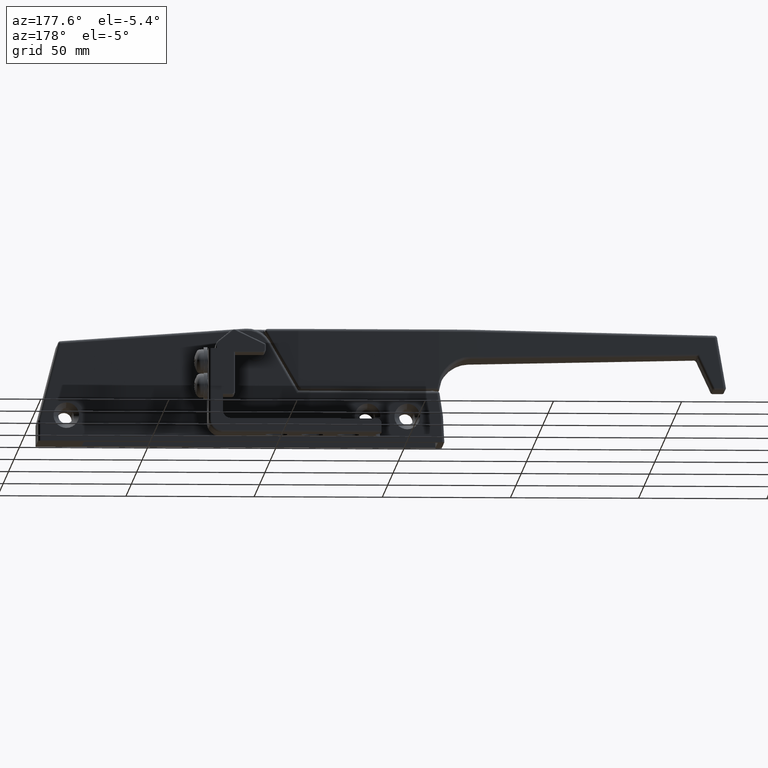
[diagram: clean part render]
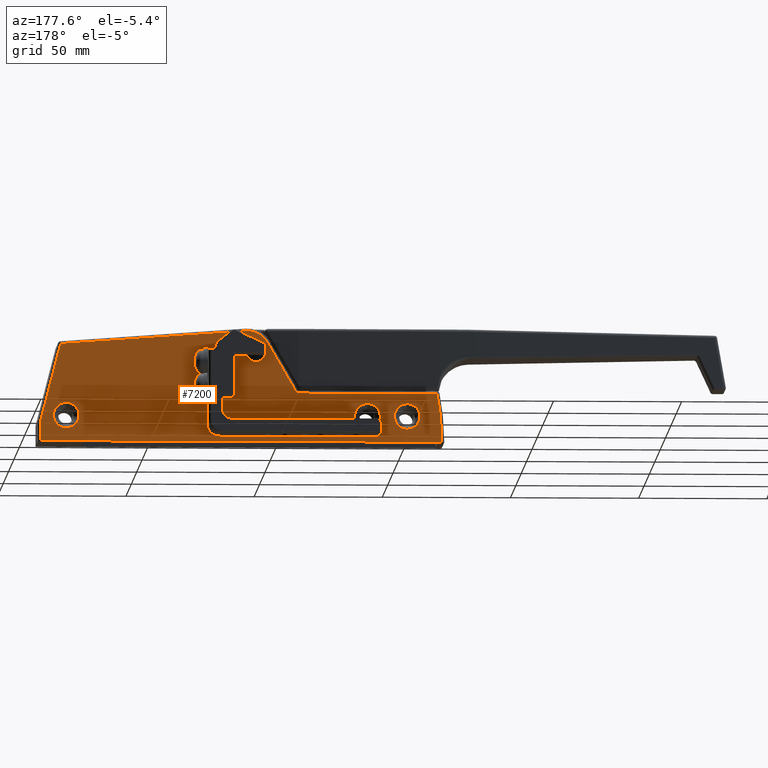
[diagram: same view with one face highlighted and labeled with its STEP entity id]
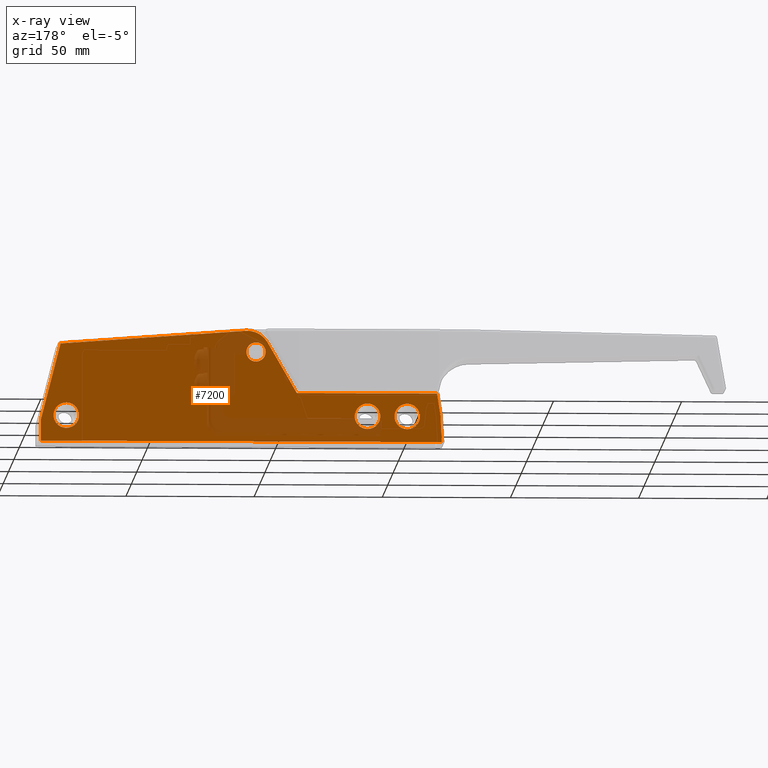
[diagram: x-ray of the same camera — body ghosted, the highlighted face saturated]
A machine part, auxiliary view. The second image highlights one B-rep face of the part: STEP entity #7200.
The next image is the same camera in x-ray: the body ghosted, the highlighted face saturated — about 19% of this face is hidden behind the body in this view.
In plain terms, the highlighted planar face has unit normal (0, 1, 0).
Its self-contained STEP definition (entity closure, byte-faithful):
#168=FACE_BOUND('',#1249,.T.);
#169=FACE_BOUND('',#1250,.T.);
#170=FACE_BOUND('',#1251,.T.);
#171=FACE_BOUND('',#1252,.T.);
#383=PLANE('',#7878);
#782=FACE_OUTER_BOUND('',#1248,.T.);
#1248=EDGE_LOOP('',(#6272,#6273,#6274,#6275,#6276,#6277,#6278,#6279,#6280));
#1249=EDGE_LOOP('',(#6281));
#1250=EDGE_LOOP('',(#6282));
#1251=EDGE_LOOP('',(#6283));
#1252=EDGE_LOOP('',(#6284));
#1565=CIRCLE('',#7709,5.);
#1567=CIRCLE('',#7712,5.);
#1569=CIRCLE('',#7715,5.);
#1623=CIRCLE('',#7863,9.);
#1628=CIRCLE('',#7879,3.75);
#2183=LINE('',#12456,#2822);
#2234=LINE('',#12587,#2873);
#2235=LINE('',#12591,#2874);
#2236=LINE('',#12599,#2875);
#2241=LINE('',#12610,#2880);
#2242=LINE('',#12613,#2881);
#2243=LINE('',#12615,#2882);
#2244=LINE('',#12616,#2883);
#2822=VECTOR('',#9582,156.498627654);
#2873=VECTOR('',#9721,22.8617170753923);
#2874=VECTOR('',#9726,54.71837553269);
#2875=VECTOR('',#9737,8.7014261350344);
#2880=VECTOR('',#9752,10.4124244109981);
#2881=VECTOR('',#9755,72.448615185289);
#2882=VECTOR('',#9756,31.1701343497495);
#2883=VECTOR('',#9757,7.873047351604);
#3364=VERTEX_POINT('',#12124);
#3366=VERTEX_POINT('',#12129);
#3368=VERTEX_POINT('',#12134);
#3480=VERTEX_POINT('',#12453);
#3481=VERTEX_POINT('',#12455);
#3515=VERTEX_POINT('',#12580);
#3516=VERTEX_POINT('',#12582);
#3517=VERTEX_POINT('',#12586);
#3518=VERTEX_POINT('',#12590);
#3520=VERTEX_POINT('',#12598);
#3522=VERTEX_POINT('',#12612);
#3523=VERTEX_POINT('',#12614);
#3524=VERTEX_POINT('',#12617);
#4234=EDGE_CURVE('',#3364,#3364,#1565,.T.);
#4236=EDGE_CURVE('',#3366,#3366,#1567,.T.);
#4238=EDGE_CURVE('',#3368,#3368,#1569,.T.);
#4391=EDGE_CURVE('',#3480,#3481,#2183,.T.);
#4454=EDGE_CURVE('',#3515,#3516,#1623,.T.);
#4456=EDGE_CURVE('',#3517,#3516,#2234,.T.);
#4458=EDGE_CURVE('',#3517,#3518,#2235,.T.);
#4462=EDGE_CURVE('',#3518,#3520,#2236,.T.);
#4468=EDGE_CURVE('',#3520,#3480,#2241,.T.);
#4469=EDGE_CURVE('',#3522,#3515,#2242,.T.);
#4470=EDGE_CURVE('',#3523,#3522,#2243,.T.);
#4471=EDGE_CURVE('',#3481,#3523,#2244,.T.);
#4472=EDGE_CURVE('',#3524,#3524,#1628,.T.);
#6272=ORIENTED_EDGE('',*,*,#4458,.F.);
#6273=ORIENTED_EDGE('',*,*,#4456,.T.);
#6274=ORIENTED_EDGE('',*,*,#4454,.F.);
#6275=ORIENTED_EDGE('',*,*,#4469,.F.);
#6276=ORIENTED_EDGE('',*,*,#4470,.F.);
#6277=ORIENTED_EDGE('',*,*,#4471,.F.);
#6278=ORIENTED_EDGE('',*,*,#4391,.F.);
#6279=ORIENTED_EDGE('',*,*,#4468,.F.);
#6280=ORIENTED_EDGE('',*,*,#4462,.F.);
#6281=ORIENTED_EDGE('',*,*,#4234,.T.);
#6282=ORIENTED_EDGE('',*,*,#4236,.T.);
#6283=ORIENTED_EDGE('',*,*,#4238,.T.);
#6284=ORIENTED_EDGE('',*,*,#4472,.F.);
#7200=ADVANCED_FACE('',(#782,#168,#169,#170,#171),#383,.T.);
#7709=AXIS2_PLACEMENT_3D('',#12125,#9255,#9256);
#7712=AXIS2_PLACEMENT_3D('',#12130,#9261,#9262);
#7715=AXIS2_PLACEMENT_3D('',#12135,#9267,#9268);
#7863=AXIS2_PLACEMENT_3D('',#12583,#9715,#9716);
#7878=AXIS2_PLACEMENT_3D('',#12611,#9753,#9754);
#7879=AXIS2_PLACEMENT_3D('',#12618,#9758,#9759);
#9255=DIRECTION('center_axis',(0.,0.,1.));
#9256=DIRECTION('ref_axis',(1.,0.,0.));
#9261=DIRECTION('center_axis',(0.,0.,1.));
#9262=DIRECTION('ref_axis',(1.,0.,0.));
#9267=DIRECTION('center_axis',(0.,0.,1.));
#9268=DIRECTION('ref_axis',(1.,0.,0.));
#9582=DIRECTION('',(0.,-1.,0.));
#9715=DIRECTION('center_axis',(0.,0.,1.));
#9716=DIRECTION('ref_axis',(0.997399902015419,-0.0720654942370614,0.));
#9721=DIRECTION('',(0.866025403784429,-0.500000000000017,0.));
#9726=DIRECTION('',(0.,1.,0.));
#9737=DIRECTION('',(-0.988555820768106,0.150855524345301,0.));
#9752=DIRECTION('',(-0.998629534754574,0.0523359562429386,0.));
#9753=DIRECTION('center_axis',(0.,0.,-1.));
#9754=DIRECTION('ref_axis',(0.,1.,0.));
#9755=DIRECTION('',(0.0720654942370614,0.997399902015419,0.));
#9756=DIRECTION('',(0.968277323709353,0.249878019021788,0.));
#9757=DIRECTION('',(1.,0.,0.));
#9758=DIRECTION('center_axis',(0.,0.,-1.));
#9759=DIRECTION('ref_axis',(0.,1.,0.));
#12124=CARTESIAN_POINT('',(15.,98.6,-13.));
#12125=CARTESIAN_POINT('Origin',(10.,98.6,-13.));
#12129=CARTESIAN_POINT('',(15.,114.1,-13.));
#12130=CARTESIAN_POINT('Origin',(10.,114.1,-13.));
#12134=CARTESIAN_POINT('',(15.,-18.9,-13.));
#12135=CARTESIAN_POINT('Origin',(10.,-18.9,-13.));
#12453=CARTESIAN_POINT('',(5.684341886081E-14,127.598627654,-13.));
#12455=CARTESIAN_POINT('',(0.,-28.9,-13.));
#12456=CARTESIAN_POINT('',(5.183828710531E-14,127.598627654,-13.));
#12580=CARTESIAN_POINT('',(43.27542687956,51.14897311092,-13.));
#12582=CARTESIAN_POINT('',(38.79882776142,59.59179119311,-13.));
#12583=CARTESIAN_POINT('Origin',(34.29882776142,51.79756255905,-13.));
#12586=CARTESIAN_POINT('',(19.,71.02264973081,-13.));
#12587=CARTESIAN_POINT('',(19.,71.02264973081,-13.));
#12590=CARTESIAN_POINT('',(19.,125.7410252635,-13.));
#12591=CARTESIAN_POINT('',(19.,71.02264973081,-13.));
#12598=CARTESIAN_POINT('',(10.39815454522,127.0536834656,-13.));
#12599=CARTESIAN_POINT('',(19.,125.7410252635,-13.));
#12610=CARTESIAN_POINT('',(10.39815454522,127.0536834656,-13.));
#12611=CARTESIAN_POINT('Origin',(0.,-29.9,-13.));
#12612=CARTESIAN_POINT('',(38.05438161944,-21.11126857604,-13.));
#12613=CARTESIAN_POINT('',(38.05438161944,-21.11126857604,-13.));
#12614=CARTESIAN_POINT('',(7.873047351604,-28.9,-13.));
#12615=CARTESIAN_POINT('',(7.873047351604,-28.9,-13.));
#12616=CARTESIAN_POINT('',(0.,-28.9,-13.));
#12617=CARTESIAN_POINT('',(35.,58.85,-13.));
#12618=CARTESIAN_POINT('Origin',(35.,55.1,-13.));